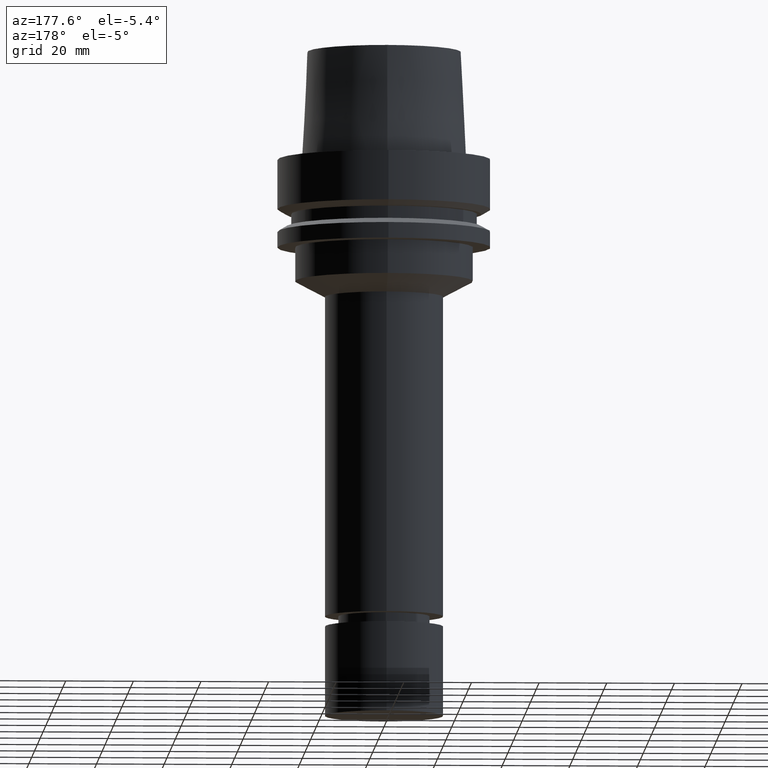
[diagram: clean part render]
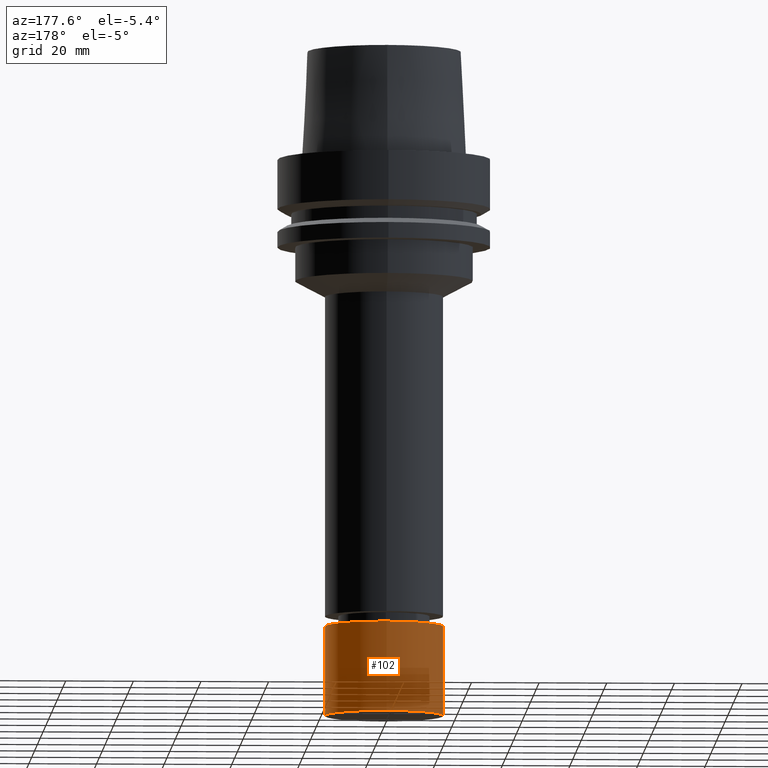
[diagram: same view with one face highlighted and labeled with its STEP entity id]
A machine part, auxiliary view. The second image highlights one B-rep face of the part: STEP entity #102.
In plain terms, the highlighted cylindrical surface (bore or boss wall) has radius 17.5 mm, axis along (0, 0, -1).
Its self-contained STEP definition (entity closure, byte-faithful):
#84=EDGE_CURVE('Unnamed[1]',#223,#223,#224,.T.);
#102=ADVANCED_FACE('Unnamed[1]',(#249,#250),#251,.T.);
#135=EDGE_CURVE('Unnamed[1]',#301,#301,#302,.T.);
#223=VERTEX_POINT('',#417);
#224=CIRCLE('',#418,17.5);
#249=FACE_BOUND('',#450,.T.);
#250=FACE_BOUND('',#451,.T.);
#251=CYLINDRICAL_SURFACE('',#452,17.5);
#301=VERTEX_POINT('',#514);
#302=CIRCLE('',#515,17.5);
#417=CARTESIAN_POINT('',(8.48068001842678E-015,17.5,-138.500015258789));
#418=AXIS2_PLACEMENT_3D('',#639,#640,#641);
#450=EDGE_LOOP('',(#668));
#451=EDGE_LOOP('',(#669));
#452=AXIS2_PLACEMENT_3D('',#670,#671,#672);
#514=CARTESIAN_POINT('',(1.01033360929657E-014,17.5,-165.0));
#515=AXIS2_PLACEMENT_3D('',#725,#726,#727);
#639=CARTESIAN_POINT('',(8.48068001842678E-015,1.69613600368536E-014,-138.500015258789));
#640=DIRECTION('',(6.12323399573677E-017,1.22464679914735E-016,-1.0));
#641=DIRECTION('',(-1.23259516440783E-032,1.0,1.22464679914735E-016));
#668=ORIENTED_EDGE('',*,*,#135,.F.);
#669=ORIENTED_EDGE('',*,*,#84,.T.);
#670=CARTESIAN_POINT('',(9.29200805569622E-015,1.85840161113924E-014,-151.750007629394));
#671=DIRECTION('',(6.12323399573677E-017,1.22464679914735E-016,-1.0));
#672=DIRECTION('',(-1.23259516440783E-032,1.0,1.22464679914735E-016));
#725=CARTESIAN_POINT('',(1.01033360929657E-014,2.02066721859313E-014,-165.0));
#726=DIRECTION('',(6.12323399573677E-017,1.22464679914735E-016,-1.0));
#727=DIRECTION('',(-1.23259516440783E-032,1.0,1.22464679914735E-016));